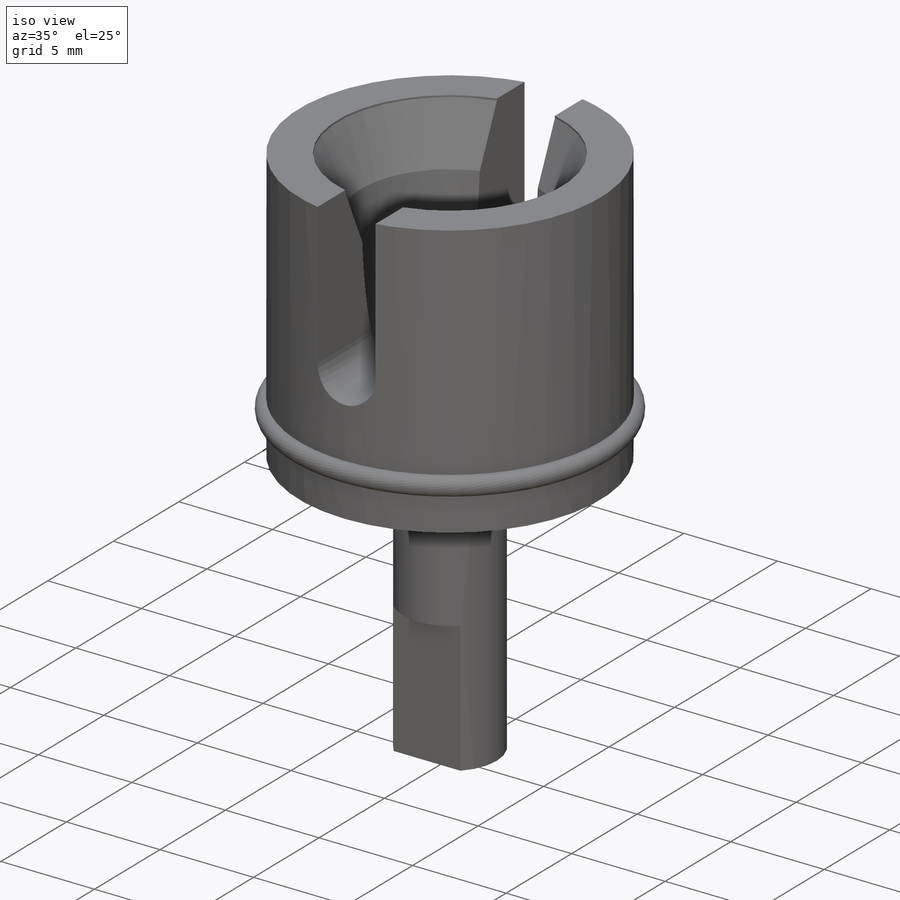
[diagram: iso view]
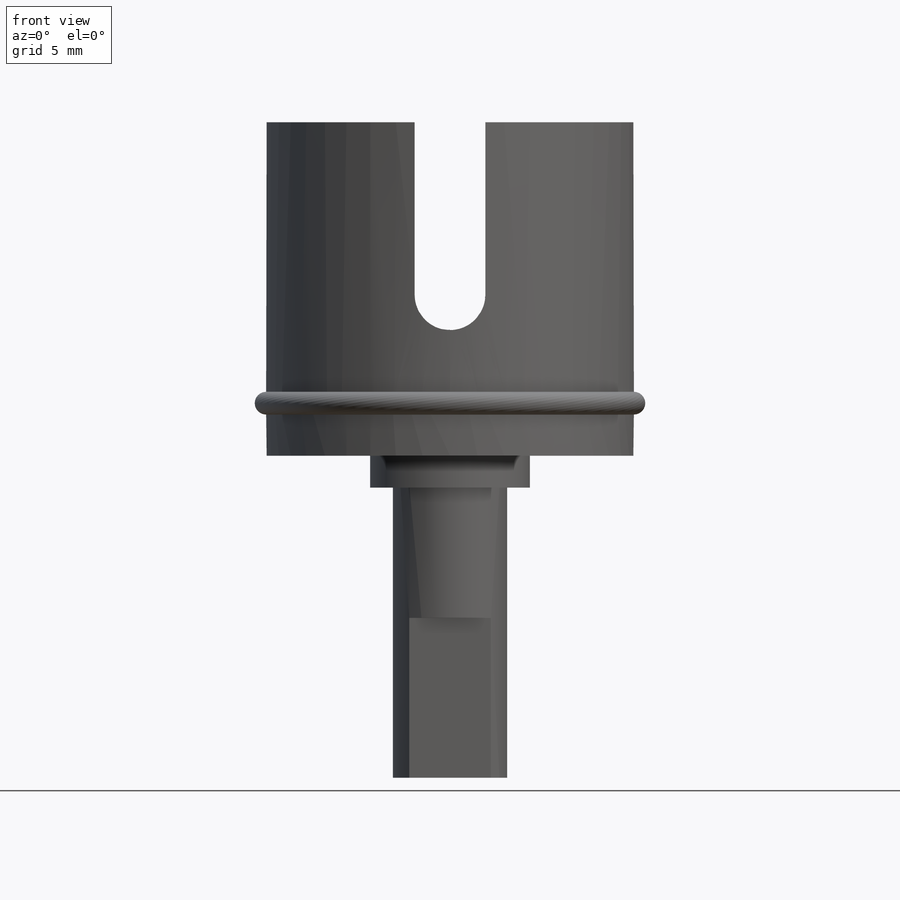
[diagram: front view]
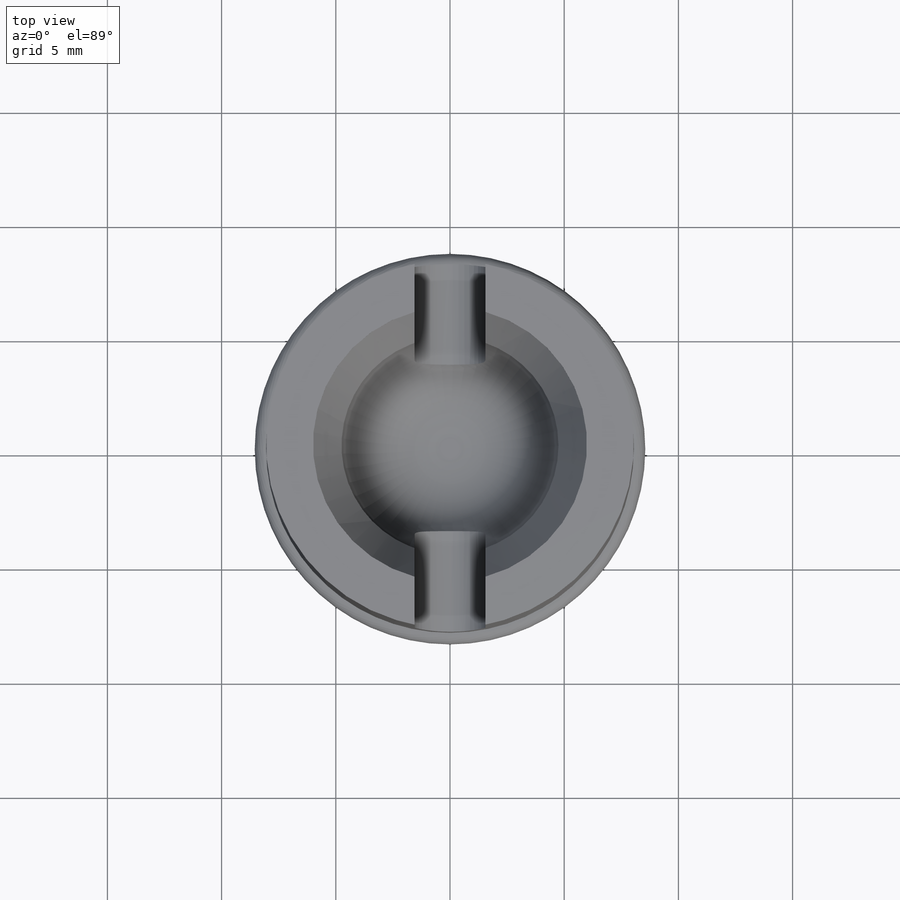
[diagram: top view]
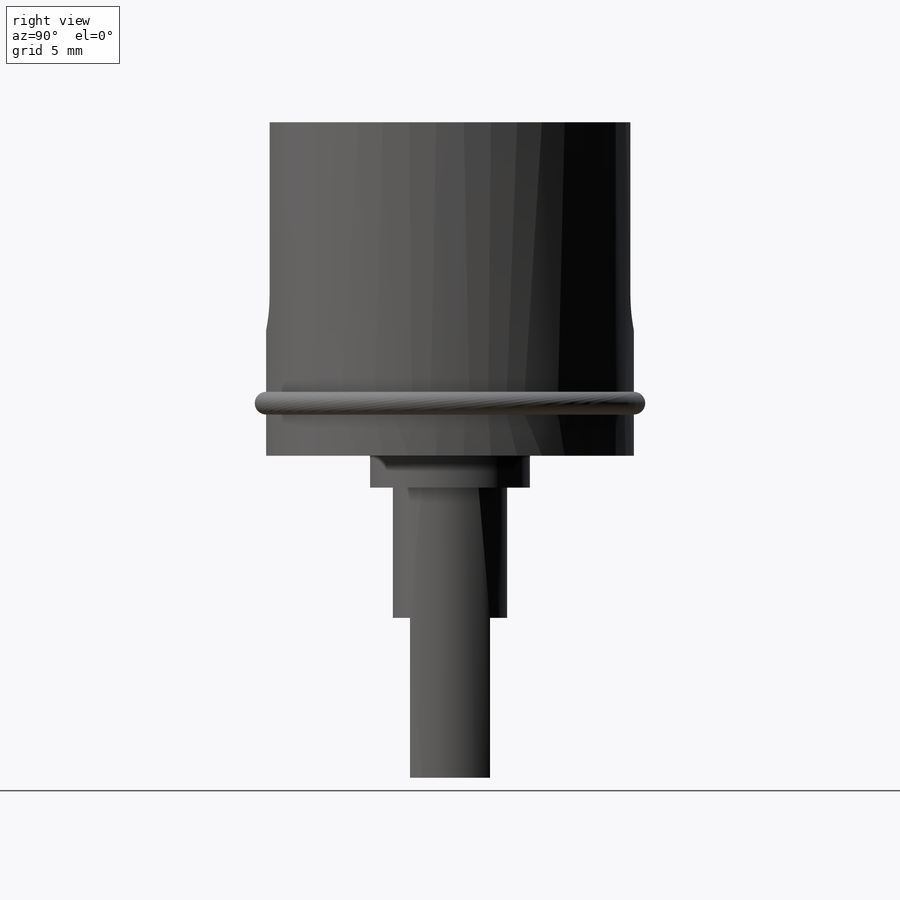
[diagram: right view]
SOLIDWORKS PART (.sldprt)
format: sldprt  version: not decoded by parser v0  size: 220,160 bytes
history: native  units: mm
features: sketch x3, cut_extrude x2, material x1, revolve x1, plane x1 (+14 scaffold rows collapsed)
feature tree (22):
  scaffold x14  (default folders/planes/origin — collapsed)
  material  "Material <not specified>"
  sketch  "Sketch1"  dims[c1.D10=0.89mm c1.D1=8.05mm c1.D2=14.6mm c1.D3=3.5mm c1.D4=1.4mm c2.D3=3.5mm c2.D5=2.5mm c2.D6=28.7mm c2.D8=1.0mm c2.D9=6.0mm c2.D12=4.75mm c2.D10=~0.887931mm c3.D8=0.1mm c3.D11=3.0mm c3.D3=12.8mm c3.D4=1.0mm c3.D7=10.8mm c3.D10=0.1mm c4.D11=3.0mm]
  revolve  "Revolve1"  Angle=360deg
  sketch  "Sketch2"  dims[D1=3.5mm D2=1.75mm D3=3.5mm]
  cut_extrude  "Extrude1"  Depth=7mm
  plane  "Plane1"  Offset=9mm
  sketch  "Sketch3"  dims[c1.D4=3.1mm c1.D3=1.55mm c1.D1=3.1mm c1.D2=1.55mm c2.D3=7.55mm]
  cut_extrude  "Extrude2"  [1 undecoded]
decode coverage: 5 of 6 modeling features carry decoded parameters
note: ~ marks probable driven/reference dimensions
note: 1 parameter value undecoded
note: suppression state not decoded; provenance and decode notes live in map.json
